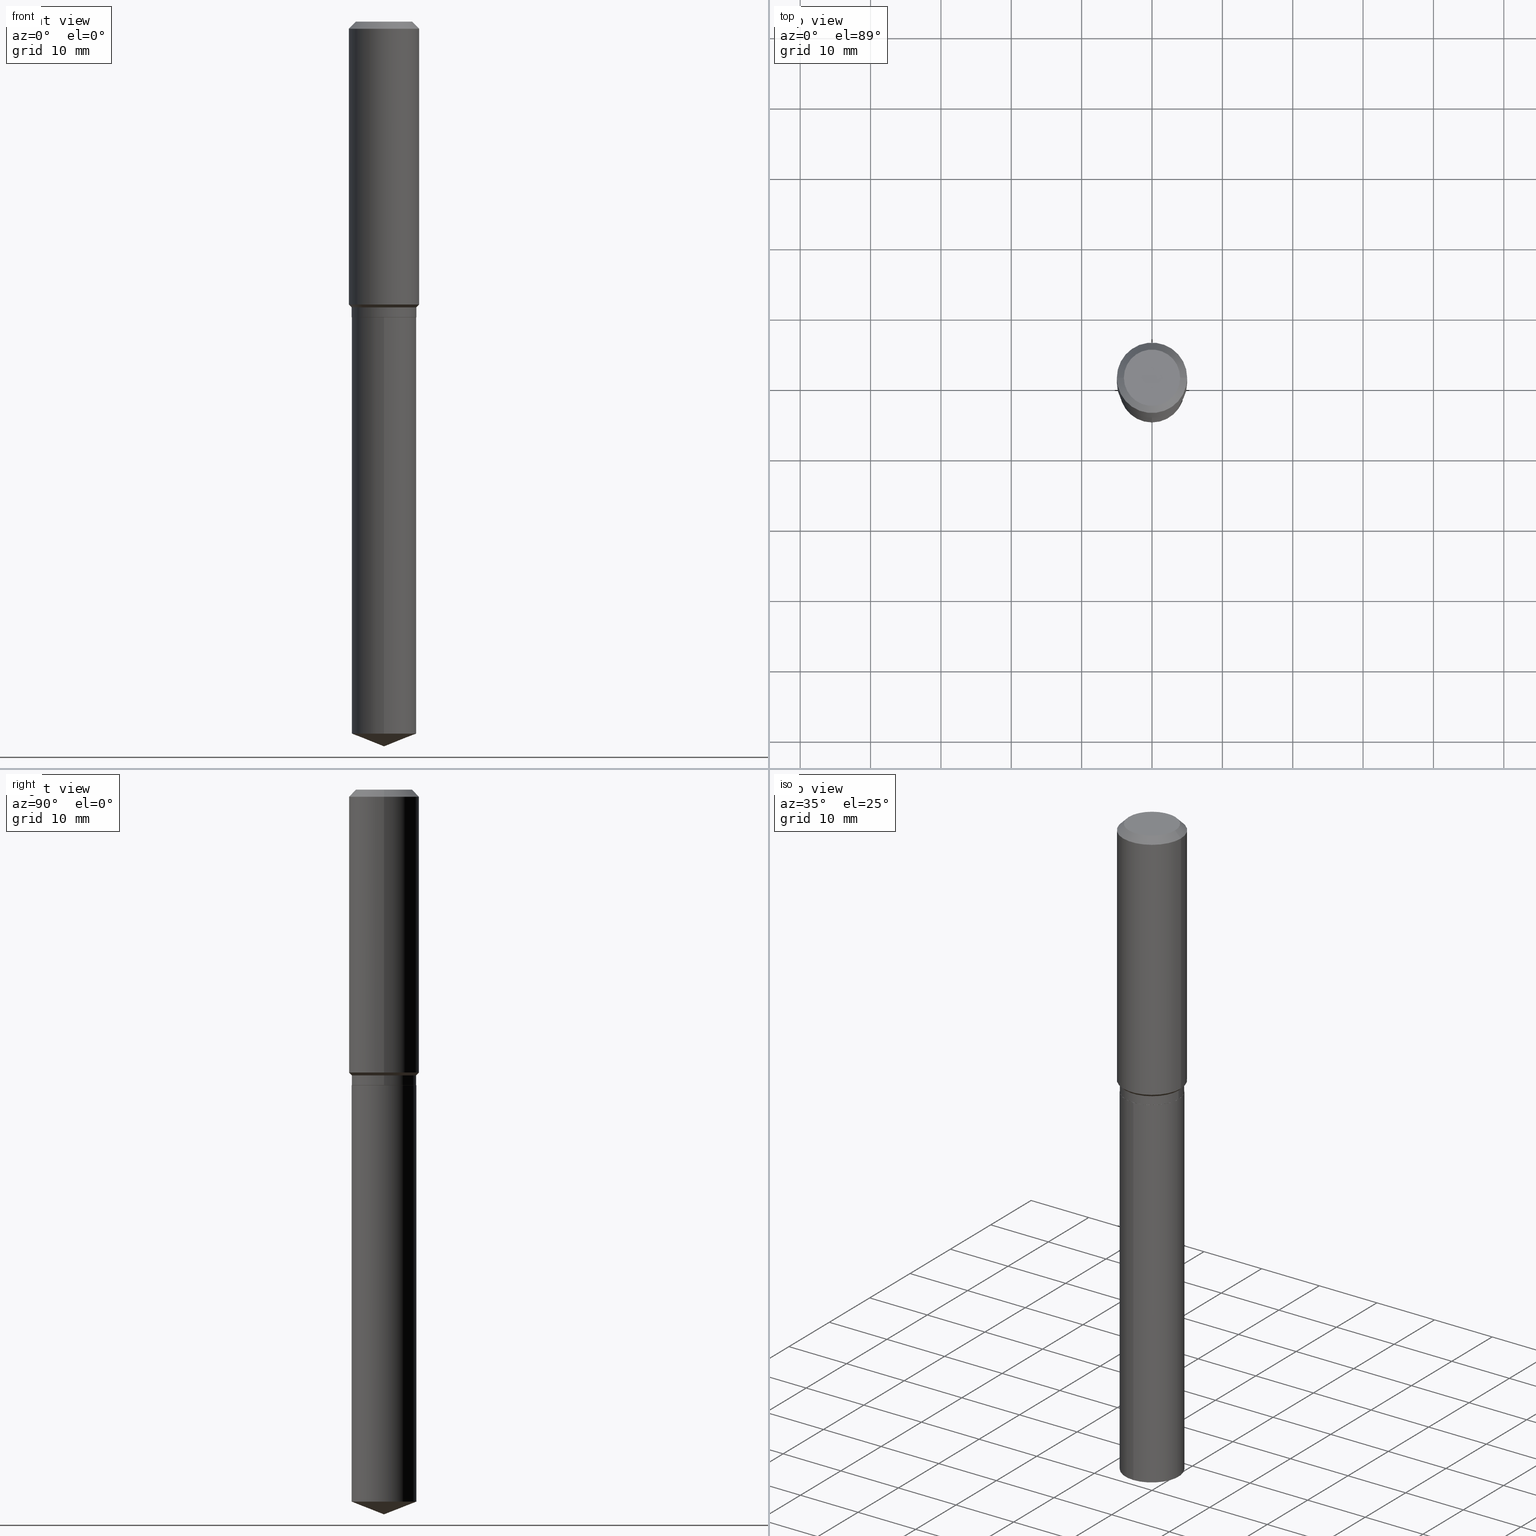
[diagram: canonical four-view strip — front | top / right | iso, engineering-drawing reading convention]
A machine part, canonical four-view strip (front | top / right | iso — engineering-drawing reading convention). The complete STEP part file that produces these views, byte-faithful:
ISO-10303-21;
HEADER;
FILE_DESCRIPTION (( 'STEP AP203' ),
    '1' );
FILE_NAME ('66565.STEP',
    '2024-04-25T01:03:59',
    ( '' ),
    ( '' ),
    'SwSTEP 2.0',
    'SolidWorks 2023',
    '' );
FILE_SCHEMA (( 'CONFIG_CONTROL_DESIGN' ));
ENDSEC;

DATA;
#1 = DIRECTION ( 'NONE',  ( -2.445468806185136597E-29, 3.491481338843145583E-15, 1.000000000000000000 ) ) ;
#2 = DIRECTION ( 'NONE',  ( -1.000000000000000000, 6.982962677686265922E-15, -4.876176775795935793E-29 ) ) ;
#3 = PERSON_AND_ORGANIZATION_ROLE ( 'classification_officer' ) ;
#4 = CIRCLE ( 'NONE', #286, 0.1811000000000000110 ) ;
#5 = CYLINDRICAL_SURFACE ( 'NONE', #139, 0.1811000000000000110 ) ;
#6 = PERSON_AND_ORGANIZATION_ROLE ( 'creator' ) ;
#7 = EDGE_CURVE ( 'NONE', #477, #257, #453, .T. ) ;
#8 = DIRECTION ( 'NONE',  ( -2.445490024045987495E-29, 3.491450953658761522E-15, 1.000000000000000000 ) ) ;
#9 = CARTESIAN_POINT ( 'NONE',  ( -9.427742298522567634E-47, 1.346031739168368355E-32, 3.855188123715870730E-18 ) ) ;
#10 = CARTESIAN_POINT ( 'NONE',  ( -1.264614540928942510E-15, -0.1811000000000057841, -1.653399999999999093 ) ) ;
#11 = PERSON_AND_ORGANIZATION ( #31, #107 ) ;
#12 = FACE_OUTER_BOUND ( 'NONE', #374, .T. ) ;
#13 = VECTOR ( 'NONE', #333, 39.37007874015748143 ) ;
#14 =( NAMED_UNIT ( * ) SI_UNIT ( $, .STERADIAN. ) SOLID_ANGLE_UNIT ( ) );
#15 = ADVANCED_FACE ( 'NONE', ( #442 ), #179, .T. ) ;
#16 = CARTESIAN_POINT ( 'NONE',  ( 3.909570980448176710E-29, -5.581831216408535603E-15, -1.598699999999999566 ) ) ;
#17 = ORIENTED_EDGE ( 'NONE', *, *, #326, .T. ) ;
#18 = PERSON_AND_ORGANIZATION_ROLE ( 'creator' ) ;
#19 = CARTESIAN_POINT ( 'NONE',  ( 0.1968500000000002192, -6.901436588424297877E-15, -1.582949999999999191 ) ) ;
#20 = ORIENTED_EDGE ( 'NONE', *, *, #144, .F. ) ;
#21 = VERTEX_POINT ( 'NONE', #487 ) ;
#22 = EDGE_CURVE ( 'NONE', #257, #477, #392, .T. ) ;
#23 = ORIENTED_EDGE ( 'NONE', *, *, #144, .T. ) ;
#24 = AXIS2_PLACEMENT_3D ( 'NONE', #82, #167, #342 ) ;
#25 = APPROVAL ( #347, 'UNSPECIFIED' ) ;
#26 = CONICAL_SURFACE ( 'NONE', #98, 0.1811000000000000110, 0.7853981633974472798 ) ;
#27 = ORIENTED_EDGE ( 'NONE', *, *, #245, .T. ) ;
#28 = LINE ( 'NONE', #267, #216 ) ;
#29 = LINE ( 'NONE', #301, #215 ) ;
#30 = ORIENTED_EDGE ( 'NONE', *, *, #359, .T. ) ;
#31 = PERSON ( 'UNSPECIFIED', 'UNSPECIFIED', 'UNSPECIFIED', ('UNSPECIFIED'), ('UNSPECIFIED'), ('UNSPECIFIED') ) ;
#32 = DIRECTION ( 'NONE',  ( -6.982962677686266711E-15, -1.000000000000000000, 3.016949744521549444E-15 ) ) ;
#33 = EDGE_CURVE ( 'NONE', #181, #252, #298, .T. ) ;
#34 = CARTESIAN_POINT ( 'NONE',  ( 4.042115389743411055E-29, -5.771069504973833690E-15, -1.652899999999999814 ) ) ;
#35 = AXIS2_PLACEMENT_3D ( 'NONE', #369, #182, #194 ) ;
#36 = AXIS2_PLACEMENT_3D ( 'NONE', #130, #163, #465 ) ;
#37 = CARTESIAN_POINT ( 'NONE',  ( 4.043338124146504977E-29, -5.772815245643255982E-15, -1.653399999999999981 ) ) ;
#38 = ORIENTED_EDGE ( 'NONE', *, *, #414, .F. ) ;
#39 = DIRECTION ( 'NONE',  ( 2.445490024045987214E-29, -3.491450953658761522E-15, -1.000000000000000000 ) ) ;
#40 = DIRECTION ( 'NONE',  ( -2.445468806185136597E-29, 3.491481338843145583E-15, 1.000000000000000000 ) ) ;
#41 = CYLINDRICAL_SURFACE ( 'NONE', #416, 0.1968500000000001082 ) ;
#42 = DIRECTION ( 'NONE',  ( -1.000000000000000000, 6.982962677686265922E-15, 0.000000000000000000 ) ) ;
#43 = APPROVAL_DATE_TIME ( #205, #196 ) ;
#44 = PRODUCT_DEFINITION ( 'UNKNOWN', '', #148, #436 ) ;
#45 = PERSON_AND_ORGANIZATION ( #31, #107 ) ;
#46 = VECTOR ( 'NONE', #203, 39.37007874015748143 ) ;
#47 = DATE_TIME_ROLE ( 'creation_date' ) ;
#48 = CARTESIAN_POINT ( 'NONE',  ( 9.627810689950954155E-31, -1.374596203102556547E-16, -0.03937000000000029365 ) ) ;
#49 = PERSON_AND_ORGANIZATION_ROLE ( 'design_owner' ) ;
#50 = FACE_OUTER_BOUND ( 'NONE', #482, .T. ) ;
#51 = COORDINATED_UNIVERSAL_TIME_OFFSET ( 5, 0, .BEHIND. ) ;
#52 = EDGE_CURVE ( 'NONE', #427, #366, #444, .T. ) ;
#53 = COORDINATED_UNIVERSAL_TIME_OFFSET ( 5, 0, .BEHIND. ) ;
#54 = APPROVAL_ROLE ( '' ) ;
#55 = VERTEX_POINT ( 'NONE', #10 ) ;
#56 = CONICAL_SURFACE ( 'NONE', #138, 0.1811000000000000110, 0.7853981633974472798 ) ;
#57 =( CONVERSION_BASED_UNIT ( 'INCH', #384 ) LENGTH_UNIT ( ) NAMED_UNIT ( #103 ) );
#58 = LINE ( 'NONE', #210, #78 ) ;
#59 = CALENDAR_DATE ( 2024, 24, 4 ) ;
#60 = ORIENTED_EDGE ( 'NONE', *, *, #22, .T. ) ;
#61 = CARTESIAN_POINT ( 'NONE',  ( -0.1811000000000000110, -4.389657466229642540E-15, -1.598699999999999566 ) ) ;
#62 = ORIENTED_EDGE ( 'NONE', *, *, #274, .T. ) ;
#63 = DIRECTION ( 'NONE',  ( -2.445468806185136597E-29, 3.491481338843145583E-15, 1.000000000000000000 ) ) ;
#64 = ADVANCED_FACE ( 'NONE', ( #12 ), #306, .T. ) ;
#65 = CYLINDRICAL_SURFACE ( 'NONE', #35, 0.1811000000000000110 ) ;
#66 = ORIENTED_EDGE ( 'NONE', *, *, #325, .F. ) ;
#67 = CONICAL_SURFACE ( 'NONE', #344, 0.1968500000000000250, 0.7853981633974447263 ) ;
#68 = AXIS2_PLACEMENT_3D ( 'NONE', #153, #448, #452 ) ;
#69 = CARTESIAN_POINT ( 'NONE',  ( 1.286792894461639136E-15, 0.1810999999999861609, -3.983662812866135106 ) ) ;
#70 = DIRECTION ( 'NONE',  ( -6.982962677686265922E-15, -1.000000000000000000, 3.498627837350006195E-15 ) ) ;
#71 = PLANE ( 'NONE',  #346 ) ;
#72 = DIRECTION ( 'NONE',  ( -2.445490024045987495E-29, 3.491450953658761522E-15, 1.000000000000000000 ) ) ;
#73 = ORIENTED_EDGE ( 'NONE', *, *, #428, .F. ) ;
#74 = DIRECTION ( 'NONE',  ( 0.7071067811865450192, -7.319954787623246579E-15, -0.7071067811865500152 ) ) ;
#75 = EDGE_CURVE ( 'NONE', #366, #427, #200, .T. ) ;
#76 = EDGE_LOOP ( 'NONE', ( #60, #323, #299, #115 ) ) ;
#77 = PLANE ( 'NONE',  #400 ) ;
#78 = VECTOR ( 'NONE', #128, 39.37007874015748143 ) ;
#79 = DIRECTION ( 'NONE',  ( 1.000000000000000000, -6.982962677686266711E-15, 4.876176775795935793E-29 ) ) ;
#80 = LINE ( 'NONE', #121, #97 ) ;
#81 = EDGE_CURVE ( 'NONE', #257, #427, #425, .T. ) ;
#82 = CARTESIAN_POINT ( 'NONE',  ( 0.000000000000000000, 0.000000000000000000, 0.000000000000000000 ) ) ;
#83 = COORDINATED_UNIVERSAL_TIME_OFFSET ( 5, 0, .BEHIND. ) ;
#84 = AXIS2_PLACEMENT_3D ( 'NONE', #352, #40, #126 ) ;
#85 =( LENGTH_UNIT ( ) NAMED_UNIT ( * ) SI_UNIT ( $, .METRE. ) );
#86 = EDGE_CURVE ( 'NONE', #269, #213, #361, .T. ) ;
#87 = FACE_OUTER_BOUND ( 'NONE', #434, .T. ) ;
#88 = FACE_OUTER_BOUND ( 'NONE', #337, .T. ) ;
#89 = CARTESIAN_POINT ( 'NONE',  ( 0.1968500000000000250, -1.512055823412797189E-15, -0.03937000000000029365 ) ) ;
#90 = COORDINATED_UNIVERSAL_TIME_OFFSET ( 5, 0, .BEHIND. ) ;
#91 = ORIENTED_EDGE ( 'NONE', *, *, #309, .T. ) ;
#92 = AXIS2_PLACEMENT_3D ( 'NONE', #143, #72, #32 ) ;
#93 = LINE ( 'NONE', #388, #377 ) ;
#94 = ORIENTED_EDGE ( 'NONE', *, *, #177, .T. ) ;
#95 = PRODUCT_RELATED_PRODUCT_CATEGORY ( 'detail', '', ( #363 ) ) ;
#96 = EDGE_LOOP ( 'NONE', ( #395, #445, #294, #152 ) ) ;
#97 = VECTOR ( 'NONE', #418, 39.37007874015748143 ) ;
#98 = AXIS2_PLACEMENT_3D ( 'NONE', #146, #446, #111 ) ;
#99 = EDGE_CURVE ( 'NONE', #334, #269, #80, .T. ) ;
#100 = FACE_OUTER_BOUND ( 'NONE', #76, .T. ) ;
#101 = DIRECTION ( 'NONE',  ( -1.000000000000000000, 6.982962677686265922E-15, 0.000000000000000000 ) ) ;
#102 = ORIENTED_EDGE ( 'NONE', *, *, #75, .F. ) ;
#103 = DIMENSIONAL_EXPONENTS ( 1.000000000000000000, 0.000000000000000000, 0.000000000000000000, 0.000000000000000000, 0.000000000000000000, 0.000000000000000000, 0.000000000000000000 ) ;
#104 = CARTESIAN_POINT ( 'NONE',  ( 3.871054846750760190E-29, -5.526840385321755480E-15, -1.582949999999999191 ) ) ;
#105 = CARTESIAN_POINT ( 'NONE',  ( -8.636270783906479342E-28, 1.233008151069932431E-13, 35.31507874015748172 ) ) ;
#106 = AXIS2_PLACEMENT_3D ( 'NONE', #382, #199, #459 ) ;
#107 = ORGANIZATION ( 'UNSPECIFIED', 'UNSPECIFIED', '' ) ;
#108 = MANIFOLD_SOLID_BREP ( 'Body-Move/Copy2[2]', #438 ) ;
#109 = DIRECTION ( 'NONE',  ( 1.000000000000000000, -6.982962677686265922E-15, 0.000000000000000000 ) ) ;
#110 = ORIENTED_EDGE ( 'NONE', *, *, #274, .F. ) ;
#111 = DIRECTION ( 'NONE',  ( 1.000000000000000000, -6.982962677686266711E-15, 0.000000000000000000 ) ) ;
#112 = ADVANCED_FACE ( 'NONE', ( #235 ), #67, .T. ) ;
#113 = EDGE_LOOP ( 'NONE', ( #150, #471 ) ) ;
#114 = CARTESIAN_POINT ( 'NONE',  ( -0.1806000000000000105, -4.486925837686404757E-15, -1.653399999999999981 ) ) ;
#115 = ORIENTED_EDGE ( 'NONE', *, *, #81, .F. ) ;
#116 = CARTESIAN_POINT ( 'NONE',  ( 0.1968500000000000250, -1.487948651171581601E-15, -0.03937000000000029365 ) ) ;
#117 = VECTOR ( 'NONE', #304, 39.37007874015748143 ) ;
#118 = CC_DESIGN_DATE_AND_TIME_ASSIGNMENT ( #424, #247, ( #208 ) ) ;
#119 = CARTESIAN_POINT ( 'NONE',  ( -8.636270783906479342E-28, 1.233008151069932431E-13, 35.31507874015748172 ) ) ;
#120 = CALENDAR_DATE ( 2024, 24, 4 ) ;
#121 = CARTESIAN_POINT ( 'NONE',  ( 0.1968500000000001082, -1.374596203102542397E-15, 9.598753983154305062E-30 ) ) ;
#122 = EDGE_CURVE ( 'NONE', #220, #413, #439, .T. ) ;
#123 = APPLICATION_CONTEXT ( 'configuration controlled 3d designs of mechanical parts and assemblies' ) ;
#124 = DATE_AND_TIME ( #59, #125 ) ;
#125 = LOCAL_TIME ( 21, 3, 59.00000000000000000, #51 ) ;
#126 = DIRECTION ( 'NONE',  ( 1.000000000000000000, -6.982962677686266711E-15, 0.000000000000000000 ) ) ;
#127 = CARTESIAN_POINT ( 'NONE',  ( -0.1968500000000000250, 1.237136582792286225E-15, -0.03937000000000029365 ) ) ;
#128 = DIRECTION ( 'NONE',  ( -0.7071067811865467956, 7.493145998870351005E-15, 0.7071067811865482389 ) ) ;
#129 = ORIENTED_EDGE ( 'NONE', *, *, #185, .T. ) ;
#130 = CARTESIAN_POINT ( 'NONE',  ( 0.000000000000000000, 0.000000000000000000, 0.000000000000000000 ) ) ;
#131 = DIRECTION ( 'NONE',  ( -2.445468806185136597E-29, 3.491481338843145583E-15, 1.000000000000000000 ) ) ;
#132 = ORIENTED_EDGE ( 'NONE', *, *, #343, .F. ) ;
#133 = AXIS2_PLACEMENT_3D ( 'NONE', #365, #328, #412 ) ;
#134 = ADVANCED_FACE ( 'NONE', ( #87 ), #5, .T. ) ;
#135 = VECTOR ( 'NONE', #280, 39.37007874015748143 ) ;
#136 = ORIENTED_EDGE ( 'NONE', *, *, #326, .F. ) ;
#137 = ADVANCED_FACE ( 'NONE', ( #278 ), #192, .T. ) ;
#138 = AXIS2_PLACEMENT_3D ( 'NONE', #16, #212, #151 ) ;
#139 = AXIS2_PLACEMENT_3D ( 'NONE', #310, #243, #456 ) ;
#140 = DIRECTION ( 'NONE',  ( -2.438088387897960049E-29, 3.491481338843145188E-15, 1.000000000000000000 ) ) ;
#141 = ORIENTED_EDGE ( 'NONE', *, *, #122, .T. ) ;
#142 = DIRECTION ( 'NONE',  ( -2.445468806185136597E-29, 3.491481338843145583E-15, 1.000000000000000000 ) ) ;
#143 = CARTESIAN_POINT ( 'NONE',  ( 4.043338124146503856E-29, -5.772815245643255193E-15, -1.653399999999999537 ) ) ;
#144 = EDGE_CURVE ( 'NONE', #249, #21, #464, .T. ) ;
#145 = ORIENTED_EDGE ( 'NONE', *, *, #359, .F. ) ;
#146 = CARTESIAN_POINT ( 'NONE',  ( 3.909570980448176710E-29, -5.581831216408535603E-15, -1.598699999999999566 ) ) ;
#147 = AXIS2_PLACEMENT_3D ( 'NONE', #241, #161, #313 ) ;
#148 = PRODUCT_DEFINITION_FORMATION_WITH_SPECIFIED_SOURCE ( 'ANY', '', #363, .NOT_KNOWN. ) ;
#149 = FACE_OUTER_BOUND ( 'NONE', #96, .T. ) ;
#150 = ORIENTED_EDGE ( 'NONE', *, *, #122, .F. ) ;
#151 = DIRECTION ( 'NONE',  ( 1.000000000000000000, -6.982962677686266711E-15, 0.000000000000000000 ) ) ;
#152 = ORIENTED_EDGE ( 'NONE', *, *, #401, .F. ) ;
#153 = CARTESIAN_POINT ( 'NONE',  ( 3.871054846750760190E-29, -5.526840385321755480E-15, -1.582949999999999191 ) ) ;
#154 = ADVANCED_FACE ( 'NONE', ( #204 ), #178, .T. ) ;
#155 = DIRECTION ( 'NONE',  ( 1.000000000000000000, -6.982962677686265922E-15, 4.876223630392693006E-29 ) ) ;
#156 = APPROVAL_PERSON_ORGANIZATION ( #45, #25, #54 ) ;
#157 = CARTESIAN_POINT ( 'NONE',  ( 0.1811000000000000110, -1.264614540928982939E-15, 8.830756140966441615E-30 ) ) ;
#158 = SECURITY_CLASSIFICATION_LEVEL ( 'unclassified' ) ;
#159 = DIRECTION ( 'NONE',  ( -2.445468806185136877E-29, 3.491481338843145188E-15, 1.000000000000000000 ) ) ;
#160 = DIRECTION ( 'NONE',  ( -2.445490024045987495E-29, 3.491450953658761522E-15, 1.000000000000000000 ) ) ;
#161 = DIRECTION ( 'NONE',  ( -2.445468806185136597E-29, 3.491481338843145583E-15, 1.000000000000000000 ) ) ;
#162 = EDGE_CURVE ( 'NONE', #321, #249, #29, .T. ) ;
#163 = DIRECTION ( 'NONE',  ( 0.000000000000000000, 0.000000000000000000, 1.000000000000000000 ) ) ;
#164 = CARTESIAN_POINT ( 'NONE',  ( 4.043338124146503856E-29, -5.772815245643255193E-15, -1.653399999999999537 ) ) ;
#165 = AXIS2_PLACEMENT_3D ( 'NONE', #104, #406, #109 ) ;
#166 = LOCAL_TIME ( 21, 3, 59.00000000000000000, #387 ) ;
#167 = DIRECTION ( 'NONE',  ( -2.445468806185136597E-29, 3.491481338843145583E-15, 1.000000000000000000 ) ) ;
#168 = PERSON_AND_ORGANIZATION ( #31, #107 ) ;
#169 = EDGE_LOOP ( 'NONE', ( #285, #229, #195, #145 ) ) ;
#170 = PERSON_AND_ORGANIZATION ( #31, #107 ) ;
#171 = ADVANCED_FACE ( 'NONE', ( #376 ), #227, .F. ) ;
#172 = ORIENTED_EDGE ( 'NONE', *, *, #488, .F. ) ;
#173 = ORIENTED_EDGE ( 'NONE', *, *, #409, .T. ) ;
#174 = AXIS2_PLACEMENT_3D ( 'NONE', #295, #140, #186 ) ;
#175 = CIRCLE ( 'NONE', #201, 0.1811000000000000110 ) ;
#176 = APPLICATION_CONTEXT ( 'configuration controlled 3d designs of mechanical parts and assemblies' ) ;
#177 = EDGE_CURVE ( 'NONE', #413, #220, #219, .T. ) ;
#178 = CYLINDRICAL_SURFACE ( 'NONE', #92, 0.1811000000000000110 ) ;
#179 = CONICAL_SURFACE ( 'NONE', #270, 99.94676754583991851, 1.195550537616119291 ) ;
#180 = AXIS2_PLACEMENT_3D ( 'NONE', #479, #297, #441 ) ;
#181 = VERTEX_POINT ( 'NONE', #262 ) ;
#182 = DIRECTION ( 'NONE',  ( -2.445468806185136597E-29, 3.491481338843145583E-15, 1.000000000000000000 ) ) ;
#183 = CARTESIAN_POINT ( 'NONE',  ( 4.042115389743411055E-29, -5.771069504973833690E-15, -1.652899999999999814 ) ) ;
#184 = CARTESIAN_POINT ( 'NONE',  ( 0.1811000000000000110, -6.846445757337518542E-15, -1.598699999999999566 ) ) ;
#185 = EDGE_CURVE ( 'NONE', #413, #477, #255, .T. ) ;
#186 = DIRECTION ( 'NONE',  ( 1.000000000000000000, -6.982962677686265922E-15, 4.876176775795935793E-29 ) ) ;
#187 = ORIENTED_EDGE ( 'NONE', *, *, #33, .T. ) ;
#188 = FACE_OUTER_BOUND ( 'NONE', #432, .T. ) ;
#189 = DIRECTION ( 'NONE',  ( -2.445468806185136877E-29, 3.491481338843145188E-15, 1.000000000000000000 ) ) ;
#190 = ORIENTED_EDGE ( 'NONE', *, *, #349, .F. ) ;
#191 = DIRECTION ( 'NONE',  ( -2.445490024045987495E-29, 3.491450953658761522E-15, 1.000000000000000000 ) ) ;
#192 = CONICAL_SURFACE ( 'NONE', #307, 99.94676754583991851, 1.195550537616119291 ) ;
#193 = CC_DESIGN_APPROVAL ( #25, ( #208 ) ) ;
#194 = DIRECTION ( 'NONE',  ( 1.000000000000000000, -6.982962677686266711E-15, 4.876176775795936353E-29 ) ) ;
#195 = ORIENTED_EDGE ( 'NONE', *, *, #86, .T. ) ;
#196 = APPROVAL ( #429, 'UNSPECIFIED' ) ;
#197 = DIRECTION ( 'NONE',  ( 6.982962677686265922E-15, 1.000000000000000000, -3.491450953658761522E-15 ) ) ;
#198 = DIRECTION ( 'NONE',  ( -2.445490024045987495E-29, 3.491450953658761522E-15, 1.000000000000000000 ) ) ;
#199 = DIRECTION ( 'NONE',  ( -2.445468806185136597E-29, 3.491481338843145583E-15, 1.000000000000000000 ) ) ;
#200 = CIRCLE ( 'NONE', #284, 0.1811000000000000110 ) ;
#201 = AXIS2_PLACEMENT_3D ( 'NONE', #261, #191, #481 ) ;
#202 = CALENDAR_DATE ( 2024, 24, 4 ) ;
#203 = DIRECTION ( 'NONE',  ( -2.445468806185136877E-29, 3.491481338843145188E-15, 1.000000000000000000 ) ) ;
#204 = FACE_OUTER_BOUND ( 'NONE', #271, .T. ) ;
#205 = DATE_AND_TIME ( #202, #166 ) ;
#206 = DIRECTION ( 'NONE',  ( 1.000000000000000000, -6.982962677686263555E-15, 0.000000000000000000 ) ) ;
#207 = ORIENTED_EDGE ( 'NONE', *, *, #86, .F. ) ;
#208 = SECURITY_CLASSIFICATION ( '', '', #158 ) ;
#209 = CC_DESIGN_PERSON_AND_ORGANIZATION_ASSIGNMENT ( #419, #3, ( #208 ) ) ;
#210 = CARTESIAN_POINT ( 'NONE',  ( -0.1811000000000000110, -4.295038321946993891E-15, -1.598699999999999566 ) ) ;
#211 = ORIENTED_EDGE ( 'NONE', *, *, #256, .F. ) ;
#212 = DIRECTION ( 'NONE',  ( -2.445468806185136597E-29, 3.491481338843145583E-15, 1.000000000000000000 ) ) ;
#213 = VERTEX_POINT ( 'NONE', #217 ) ;
#214 = EDGE_CURVE ( 'NONE', #213, #269, #290, .T. ) ;
#215 = VECTOR ( 'NONE', #293, 39.37007874015747433 ) ;
#216 = VECTOR ( 'NONE', #234, 39.37007874015748854 ) ;
#217 = CARTESIAN_POINT ( 'NONE',  ( -0.1968500000000000250, -1.433446627472247151E-15, -0.03937000000000029365 ) ) ;
#218 = ORIENTED_EDGE ( 'NONE', *, *, #162, .T. ) ;
#219 = CIRCLE ( 'NONE', #484, 0.1806000000000000105 ) ;
#220 = VERTEX_POINT ( 'NONE', #489 ) ;
#221 =( GEOMETRIC_REPRESENTATION_CONTEXT ( 3 ) GLOBAL_UNCERTAINTY_ASSIGNED_CONTEXT ( ( #332 ) ) GLOBAL_UNIT_ASSIGNED_CONTEXT ( ( #57, #312, #14 ) ) REPRESENTATION_CONTEXT ( 'NONE', 'WORKASPACE' ) );
#222 = ADVANCED_FACE ( 'NONE', ( #291 ), #463, .T. ) ;
#223 = LINE ( 'NONE', #373, #259 ) ;
#224 = ORIENTED_EDGE ( 'NONE', *, *, #325, .T. ) ;
#225 = EDGE_LOOP ( 'NONE', ( #38, #218, #172 ) ) ;
#226 = CARTESIAN_POINT ( 'NONE',  ( -0.1811000000000000110, -4.389657466229642540E-15, -1.652899999999999814 ) ) ;
#227 = PLANE ( 'NONE',  #174 ) ;
#228 = ADVANCED_FACE ( 'NONE', ( #100 ), #65, .T. ) ;
#229 = ORIENTED_EDGE ( 'NONE', *, *, #460, .T. ) ;
#230 = CLOSED_SHELL ( 'NONE', ( #154, #15, #137, #478, #437 ) ) ;
#231 = CARTESIAN_POINT ( 'NONE',  ( 4.043338124146503856E-29, -5.772815245643255193E-15, -1.653399999999999537 ) ) ;
#232 = VECTOR ( 'NONE', #159, 39.37007874015748143 ) ;
#233 = CARTESIAN_POINT ( 'NONE',  ( 1.286792894461581746E-15, 0.1810999999999942378, -1.653400000000000203 ) ) ;
#234 = DIRECTION ( 'NONE',  ( -6.497071151882119836E-15, -0.9304175679820245737, 0.3665012267242972466 ) ) ;
#235 = FACE_OUTER_BOUND ( 'NONE', #283, .T. ) ;
#236 = CYLINDRICAL_SURFACE ( 'NONE', #475, 0.1811000000000000110 ) ;
#237 = DIRECTION ( 'NONE',  ( -2.445468806185136597E-29, 3.491481338843145583E-15, 1.000000000000000000 ) ) ;
#238 = CARTESIAN_POINT ( 'NONE',  ( 4.043338124146503856E-29, -5.772815245643255193E-15, -1.653399999999999537 ) ) ;
#239 = ADVANCED_FACE ( 'NONE', ( #330 ), #404, .T. ) ;
#240 = CC_DESIGN_APPROVAL ( #253, ( #44 ) ) ;
#241 = CARTESIAN_POINT ( 'NONE',  ( 9.627810689950954155E-31, -1.374596203102556547E-16, -0.03937000000000029365 ) ) ;
#242 = DIRECTION ( 'NONE',  ( 1.000000000000000000, -6.982962677686265922E-15, 4.876223630392693006E-29 ) ) ;
#243 = DIRECTION ( 'NONE',  ( -2.445468806185136597E-29, 3.491481338843145583E-15, 1.000000000000000000 ) ) ;
#244 = EDGE_LOOP ( 'NONE', ( #398, #403, #447 ) ) ;
#245 = EDGE_CURVE ( 'NONE', #334, #411, #472, .T. ) ;
#246 = CARTESIAN_POINT ( 'NONE',  ( -0.1968500000000001082, 1.398703375343757985E-15, -9.682923725166787881E-30 ) ) ;
#247 = DATE_TIME_ROLE ( 'classification_date' ) ;
#248 = CONICAL_SURFACE ( 'NONE', #367, 0.1806000000000000105, 0.7853981633972775267 ) ;
#249 = VERTEX_POINT ( 'NONE', #69 ) ;
#250 = CARTESIAN_POINT ( 'NONE',  ( 4.043338124146504977E-29, -5.772815245643255982E-15, -1.653399999999999981 ) ) ;
#251 = ORIENTED_EDGE ( 'NONE', *, *, #52, .T. ) ;
#252 = VERTEX_POINT ( 'NONE', #410 ) ;
#253 = APPROVAL ( #345, 'UNSPECIFIED' ) ;
#254 = AXIS2_PLACEMENT_3D ( 'NONE', #402, #476, #101 ) ;
#255 = LINE ( 'NONE', #339, #13 ) ;
#256 = EDGE_CURVE ( 'NONE', #477, #366, #223, .T. ) ;
#257 = VERTEX_POINT ( 'NONE', #335 ) ;
#258 = DIRECTION ( 'NONE',  ( 1.000000000000000000, -6.982962677686263555E-15, 0.000000000000000000 ) ) ;
#259 = VECTOR ( 'NONE', #189, 39.37007874015748143 ) ;
#260 = ORIENTED_EDGE ( 'NONE', *, *, #245, .F. ) ;
#261 = CARTESIAN_POINT ( 'NONE',  ( 4.043338124146503856E-29, -5.772815245643255193E-15, -1.653399999999999537 ) ) ;
#262 = CARTESIAN_POINT ( 'NONE',  ( 0.1574800000000000089, -1.284169937930321189E-15, 3.855188123724205385E-18 ) ) ;
#263 = VERTEX_POINT ( 'NONE', #486 ) ;
#264 = CARTESIAN_POINT ( 'NONE',  ( 9.741972586415979008E-29, -1.390881356590026921E-14, -3.983662812866134662 ) ) ;
#265 = ADVANCED_FACE ( 'NONE', ( #149 ), #56, .T. ) ;
#266 = ORIENTED_EDGE ( 'NONE', *, *, #7, .T. ) ;
#267 = CARTESIAN_POINT ( 'NONE',  ( 9.916391884284218527E-29, -1.415793409481399778E-14, -4.054999999999999716 ) ) ;
#268 = DIRECTION ( 'NONE',  ( -2.445490024045987495E-29, 3.491450953658761522E-15, 1.000000000000000000 ) ) ;
#269 = VERTEX_POINT ( 'NONE', #89 ) ;
#270 = AXIS2_PLACEMENT_3D ( 'NONE', #105, #407, #70 ) ;
#271 = EDGE_LOOP ( 'NONE', ( #355, #23, #190, #66 ) ) ;
#272 = CARTESIAN_POINT ( 'NONE',  ( -0.1968500000000002192, -4.128137009977996903E-15, -1.582949999999999191 ) ) ;
#273 = DIRECTION ( 'NONE',  ( -2.445490024045987495E-29, 3.491450953658761522E-15, 1.000000000000000000 ) ) ;
#274 = EDGE_CURVE ( 'NONE', #411, #213, #320, .T. ) ;
#275 = DIRECTION ( 'NONE',  ( -2.445490024045987775E-29, 3.491450953658761522E-15, 1.000000000000000000 ) ) ;
#276 = APPROVAL_ROLE ( '' ) ;
#277 = CIRCLE ( 'NONE', #405, 0.1811000000000000110 ) ;
#278 = FACE_OUTER_BOUND ( 'NONE', #244, .T. ) ;
#279 = APPLICATION_PROTOCOL_DEFINITION ( 'international standard', 'config_control_design', 1994, #123 ) ;
#280 = DIRECTION ( 'NONE',  ( -0.7071067811865450192, 2.468850131082230634E-15, -0.7071067811865500152 ) ) ;
#281 = CC_DESIGN_PERSON_AND_ORGANIZATION_ASSIGNMENT ( #350, #18, ( #44 ) ) ;
#282 = CARTESIAN_POINT ( 'NONE',  ( 9.741972586415979008E-29, -1.390881356590026921E-14, -3.983662812866134662 ) ) ;
#283 = EDGE_LOOP ( 'NONE', ( #360, #480, #30, #370 ) ) ;
#284 = AXIS2_PLACEMENT_3D ( 'NONE', #318, #1, #455 ) ;
#285 = ORIENTED_EDGE ( 'NONE', *, *, #33, .F. ) ;
#286 = AXIS2_PLACEMENT_3D ( 'NONE', #264, #198, #417 ) ;
#287 = PRODUCT_DEFINITION_SHAPE ( 'NONE', 'NONE',  #44 ) ;
#288 = EDGE_LOOP ( 'NONE', ( #451, #305 ) ) ;
#289 = AXIS2_PLACEMENT_3D ( 'NONE', #183, #142, #378 ) ;
#290 = CIRCLE ( 'NONE', #133, 0.1968500000000000250 ) ;
#291 = FACE_OUTER_BOUND ( 'NONE', #169, .T. ) ;
#292 = CC_DESIGN_PERSON_AND_ORGANIZATION_ASSIGNMENT ( #11, #314, ( #148 ) ) ;
#293 = DIRECTION ( 'NONE',  ( 6.611014441532068167E-15, 0.9304175679820272382, 0.3665012267242907518 ) ) ;
#294 = ORIENTED_EDGE ( 'NONE', *, *, #343, .T. ) ;
#295 = CARTESIAN_POINT ( 'NONE',  ( 2.296886989417275396E-29, -8.273832672401003968E-15, -1.653399999999999981 ) ) ;
#296 = ORIENTED_EDGE ( 'NONE', *, *, #401, .T. ) ;
#297 = DIRECTION ( 'NONE',  ( -2.445468806185136597E-29, 3.491481338843145583E-15, 1.000000000000000000 ) ) ;
#298 = CIRCLE ( 'NONE', #354, 0.1574800000000000089 ) ;
#299 = ORIENTED_EDGE ( 'NONE', *, *, #52, .F. ) ;
#300 = APPROVAL_PERSON_ORGANIZATION ( #390, #253, #276 ) ;
#301 = CARTESIAN_POINT ( 'NONE',  ( 9.916462662755118190E-29, -1.415783361708627607E-14, -4.054999999999999716 ) ) ;
#302 = DIRECTION ( 'NONE',  ( -2.445468806185136597E-29, 3.491481338843145583E-15, 1.000000000000000000 ) ) ;
#303 = DIRECTION ( 'NONE',  ( -2.445468806185136597E-29, 3.491481338843145583E-15, 1.000000000000000000 ) ) ;
#304 = DIRECTION ( 'NONE',  ( 0.7071067811865467956, -2.468850131082249172E-15, 0.7071067811865482389 ) ) ;
#305 = ORIENTED_EDGE ( 'NONE', *, *, #428, .T. ) ;
#306 = CYLINDRICAL_SURFACE ( 'NONE', #24, 0.1968500000000001082 ) ;
#307 = AXIS2_PLACEMENT_3D ( 'NONE', #119, #273, #389 ) ;
#308 = CC_DESIGN_SECURITY_CLASSIFICATION ( #208, ( #148 ) ) ;
#309 = EDGE_CURVE ( 'NONE', #252, #181, #327, .T. ) ;
#310 = CARTESIAN_POINT ( 'NONE',  ( 0.000000000000000000, 0.000000000000000000, 0.000000000000000000 ) ) ;
#311 = PERSON_AND_ORGANIZATION ( #31, #107 ) ;
#312 =( NAMED_UNIT ( * ) PLANE_ANGLE_UNIT ( ) SI_UNIT ( $, .RADIAN. ) );
#313 = DIRECTION ( 'NONE',  ( 1.000000000000000000, -6.982962677686265922E-15, 0.000000000000000000 ) ) ;
#314 = PERSON_AND_ORGANIZATION_ROLE ( 'design_supplier' ) ;
#315 = EDGE_CURVE ( 'NONE', #366, #411, #58, .T. ) ;
#316 = LINE ( 'NONE', #127, #135 ) ;
#317 = CIRCLE ( 'NONE', #68, 0.1968500000000002192 ) ;
#318 = CARTESIAN_POINT ( 'NONE',  ( 3.909570980448176710E-29, -5.581831216408535603E-15, -1.598699999999999566 ) ) ;
#319 = DIRECTION ( 'NONE',  ( -6.982962677686266711E-15, -1.000000000000000000, 3.016949744521549444E-15 ) ) ;
#320 = LINE ( 'NONE', #246, #46 ) ;
#321 = VERTEX_POINT ( 'NONE', #386 ) ;
#322 = APPLICATION_PROTOCOL_DEFINITION ( 'international standard', 'config_control_design', 1994, #176 ) ;
#323 = ORIENTED_EDGE ( 'NONE', *, *, #256, .T. ) ;
#324 = ORIENTED_EDGE ( 'NONE', *, *, #185, .F. ) ;
#325 = EDGE_CURVE ( 'NONE', #263, #55, #93, .T. ) ;
#326 = EDGE_CURVE ( 'NONE', #220, #257, #466, .T. ) ;
#327 = CIRCLE ( 'NONE', #394, 0.1574800000000000089 ) ;
#328 = DIRECTION ( 'NONE',  ( -2.445468806185136597E-29, 3.491481338843145583E-15, 1.000000000000000000 ) ) ;
#329 = ORIENTED_EDGE ( 'NONE', *, *, #7, .F. ) ;
#330 = FACE_OUTER_BOUND ( 'NONE', #415, .T. ) ;
#331 = ORIENTED_EDGE ( 'NONE', *, *, #22, .F. ) ;
#332 = UNCERTAINTY_MEASURE_WITH_UNIT (LENGTH_MEASURE( 1.000000000000000082E-05 ), #57, 'distance_accuracy_value', 'NONE');
#333 = DIRECTION ( 'NONE',  ( -0.7071067811864267805, 7.493145998869918709E-15, 0.7071067811866682540 ) ) ;
#334 = VERTEX_POINT ( 'NONE', #19 ) ;
#335 = CARTESIAN_POINT ( 'NONE',  ( 0.1811000000000000110, -7.035684045902816629E-15, -1.652899999999999814 ) ) ;
#336 = ADVANCED_FACE ( 'NONE', ( #50 ), #248, .T. ) ;
#337 = EDGE_LOOP ( 'NONE', ( #110, #296, #440, #468 ) ) ;
#338 = LOCAL_TIME ( 21, 3, 59.00000000000000000, #90 ) ;
#339 = CARTESIAN_POINT ( 'NONE',  ( -0.1806000000000000105, -4.489575064860515169E-15, -1.653399999999999981 ) ) ;
#340 = DIRECTION ( 'NONE',  ( 1.000000000000000000, -6.982962677686266711E-15, 0.000000000000000000 ) ) ;
#341 = LINE ( 'NONE', #116, #368 ) ;
#342 = DIRECTION ( 'NONE',  ( 1.000000000000000000, -6.982962677686266711E-15, 4.876176775795935793E-29 ) ) ;
#343 = EDGE_CURVE ( 'NONE', #427, #334, #351, .T. ) ;
#344 = AXIS2_PLACEMENT_3D ( 'NONE', #48, #462, #42 ) ;
#345 = APPROVAL_STATUS ( 'not_yet_approved' ) ;
#346 = AXIS2_PLACEMENT_3D ( 'NONE', #231, #39, #197 ) ;
#347 = APPROVAL_STATUS ( 'not_yet_approved' ) ;
#348 = DIRECTION ( 'NONE',  ( -6.982962677686266711E-15, -1.000000000000000000, 3.016949744521549444E-15 ) ) ;
#349 = EDGE_CURVE ( 'NONE', #55, #21, #277, .T. ) ;
#350 = PERSON_AND_ORGANIZATION ( #31, #107 ) ;
#351 = LINE ( 'NONE', #397, #117 ) ;
#352 = CARTESIAN_POINT ( 'NONE',  ( 3.909570980448176710E-29, -5.581831216408535603E-15, -1.598699999999999566 ) ) ;
#353 = DATE_AND_TIME ( #120, #385 ) ;
#354 = AXIS2_PLACEMENT_3D ( 'NONE', #490, #237, #155 ) ;
#355 = ORIENTED_EDGE ( 'NONE', *, *, #488, .T. ) ;
#356 = MECHANICAL_CONTEXT ( 'NONE', #123, 'mechanical' ) ;
#357 = DIRECTION ( 'NONE',  ( -2.445490024045987775E-29, 3.491450953658761522E-15, 1.000000000000000000 ) ) ;
#358 = ORIENTED_EDGE ( 'NONE', *, *, #315, .T. ) ;
#359 = EDGE_CURVE ( 'NONE', #252, #213, #316, .T. ) ;
#360 = ORIENTED_EDGE ( 'NONE', *, *, #460, .F. ) ;
#361 = CIRCLE ( 'NONE', #147, 0.1968500000000000250 ) ;
#362 = LOCAL_TIME ( 21, 3, 59.00000000000000000, #83 ) ;
#363 = PRODUCT ( '66565', '66565', '', ( #356 ) ) ;
#364 = CC_DESIGN_PERSON_AND_ORGANIZATION_ASSIGNMENT ( #168, #49, ( #363 ) ) ;
#365 = CARTESIAN_POINT ( 'NONE',  ( 9.627810689950954155E-31, -1.374596203102556547E-16, -0.03937000000000029365 ) ) ;
#366 = VERTEX_POINT ( 'NONE', #61 ) ;
#367 = AXIS2_PLACEMENT_3D ( 'NONE', #250, #131, #206 ) ;
#368 = VECTOR ( 'NONE', #74, 39.37007874015748143 ) ;
#369 = CARTESIAN_POINT ( 'NONE',  ( 0.000000000000000000, 0.000000000000000000, 0.000000000000000000 ) ) ;
#370 = ORIENTED_EDGE ( 'NONE', *, *, #214, .T. ) ;
#371 = ORIENTED_EDGE ( 'NONE', *, *, #81, .T. ) ;
#372 = CARTESIAN_POINT ( 'NONE',  ( -4.713871149261283817E-47, 6.730158695841841775E-33, 1.927594061857935365E-18 ) ) ;
#373 = CARTESIAN_POINT ( 'NONE',  ( -0.1811000000000000110, 1.286792894461541515E-15, -8.908191448451634438E-30 ) ) ;
#374 = EDGE_LOOP ( 'NONE', ( #27, #62, #207, #474 ) ) ;
#375 = DIRECTION ( 'NONE',  ( 2.438088387897960049E-29, -3.491481338843145188E-15, -1.000000000000000000 ) ) ;
#376 = FACE_OUTER_BOUND ( 'NONE', #113, .T. ) ;
#377 = VECTOR ( 'NONE', #357, 39.37007874015748143 ) ;
#378 = DIRECTION ( 'NONE',  ( 1.000000000000000000, -6.982962677686266711E-15, 0.000000000000000000 ) ) ;
#379 = CIRCLE ( 'NONE', #473, 0.1811000000000000110 ) ;
#380 = CC_DESIGN_DATE_AND_TIME_ASSIGNMENT ( #457, #47, ( #44 ) ) ;
#381 = APPROVAL_DATE_TIME ( #124, #25 ) ;
#382 = CARTESIAN_POINT ( 'NONE',  ( 4.043338124146504977E-29, -5.772815245643255982E-15, -1.653399999999999981 ) ) ;
#383 = VECTOR ( 'NONE', #275, 39.37007874015748143 ) ;
#384 = LENGTH_MEASURE_WITH_UNIT ( LENGTH_MEASURE( 0.02539999999999999897 ), #85 );
#385 = LOCAL_TIME ( 21, 3, 59.00000000000000000, #53 ) ;
#386 = CARTESIAN_POINT ( 'NONE',  ( 9.916462047506479508E-29, -1.415783361708627607E-14, -4.054999999999999716 ) ) ;
#387 = COORDINATED_UNIVERSAL_TIME_OFFSET ( 5, 0, .BEHIND. ) ;
#388 = CARTESIAN_POINT ( 'NONE',  ( -1.264614540928942510E-15, -0.1811000000000057841, -1.653399999999999093 ) ) ;
#389 = DIRECTION ( 'NONE',  ( -6.982962677686265922E-15, -1.000000000000000000, 3.498627837350006195E-15 ) ) ;
#390 = PERSON_AND_ORGANIZATION ( #31, #107 ) ;
#391 = EDGE_LOOP ( 'NONE', ( #91, #187 ) ) ;
#392 = CIRCLE ( 'NONE', #430, 0.1811000000000000110 ) ;
#393 = APPROVAL_DATE_TIME ( #353, #253 ) ;
#394 = AXIS2_PLACEMENT_3D ( 'NONE', #9, #450, #242 ) ;
#395 = ORIENTED_EDGE ( 'NONE', *, *, #315, .F. ) ;
#396 = ADVANCED_FACE ( 'NONE', ( #88 ), #41, .T. ) ;
#397 = CARTESIAN_POINT ( 'NONE',  ( 0.1811000000000000110, -6.846445757337518542E-15, -1.598699999999999566 ) ) ;
#398 = ORIENTED_EDGE ( 'NONE', *, *, #162, .F. ) ;
#399 = EDGE_LOOP ( 'NONE', ( #20, #173, #224, #73 ) ) ;
#400 = AXIS2_PLACEMENT_3D ( 'NONE', #372, #375, #2 ) ;
#401 = EDGE_CURVE ( 'NONE', #411, #334, #317, .T. ) ;
#402 = CARTESIAN_POINT ( 'NONE',  ( 9.627810689950954155E-31, -1.374596203102556547E-16, -0.03937000000000029365 ) ) ;
#403 = ORIENTED_EDGE ( 'NONE', *, *, #414, .T. ) ;
#404 = CONICAL_SURFACE ( 'NONE', #180, 0.1806000000000000105, 0.7853981633972775267 ) ;
#405 = AXIS2_PLACEMENT_3D ( 'NONE', #164, #268, #420 ) ;
#406 = DIRECTION ( 'NONE',  ( -2.445468806185136597E-29, 3.491481338843145583E-15, 1.000000000000000000 ) ) ;
#407 = DIRECTION ( 'NONE',  ( -2.445490024045987495E-29, 3.491450953658761522E-15, 1.000000000000000000 ) ) ;
#408 = CARTESIAN_POINT ( 'NONE',  ( 0.000000000000000000, 0.000000000000000000, 0.000000000000000000 ) ) ;
#409 = EDGE_CURVE ( 'NONE', #249, #263, #4, .T. ) ;
#410 = CARTESIAN_POINT ( 'NONE',  ( -0.1574800000000000089, 1.168406772637159618E-15, 3.855188123707939751E-18 ) ) ;
#411 = VERTEX_POINT ( 'NONE', #272 ) ;
#412 = DIRECTION ( 'NONE',  ( 1.000000000000000000, -6.982962677686265922E-15, 0.000000000000000000 ) ) ;
#413 = VERTEX_POINT ( 'NONE', #114 ) ;
#414 = EDGE_CURVE ( 'NONE', #321, #263, #28, .T. ) ;
#415 = EDGE_LOOP ( 'NONE', ( #324, #94, #17, #329 ) ) ;
#416 = AXIS2_PLACEMENT_3D ( 'NONE', #408, #303, #79 ) ;
#417 = DIRECTION ( 'NONE',  ( -6.982962677686266711E-15, -1.000000000000000000, 3.016949744521549444E-15 ) ) ;
#418 = DIRECTION ( 'NONE',  ( -2.445468806185136877E-29, 3.491481338843145188E-15, 1.000000000000000000 ) ) ;
#419 = PERSON_AND_ORGANIZATION ( #31, #107 ) ;
#420 = DIRECTION ( 'NONE',  ( -6.982962677686266711E-15, -1.000000000000000000, 3.016949744521549444E-15 ) ) ;
#421 = CALENDAR_DATE ( 2024, 24, 4 ) ;
#422 = APPROVAL_PERSON_ORGANIZATION ( #170, #196, #469 ) ;
#423 = ADVANCED_FACE ( 'NONE', ( #483 ), #77, .F. ) ;
#424 = DATE_AND_TIME ( #426, #338 ) ;
#425 = LINE ( 'NONE', #157, #232 ) ;
#426 = CALENDAR_DATE ( 2024, 24, 4 ) ;
#427 = VERTEX_POINT ( 'NONE', #184 ) ;
#428 = EDGE_CURVE ( 'NONE', #21, #55, #175, .T. ) ;
#429 = APPROVAL_STATUS ( 'not_yet_approved' ) ;
#430 = AXIS2_PLACEMENT_3D ( 'NONE', #34, #302, #340 ) ;
#431 = DIRECTION ( 'NONE',  ( 0.7071067811864267805, -2.468850131080992517E-15, 0.7071067811866682540 ) ) ;
#432 = EDGE_LOOP ( 'NONE', ( #251, #358, #260, #132 ) ) ;
#433 = MANIFOLD_SOLID_BREP ( 'Body-Move/Copy2[1]', #230 ) ;
#434 = EDGE_LOOP ( 'NONE', ( #211, #266, #371, #102 ) ) ;
#435 = ADVANCED_BREP_SHAPE_REPRESENTATION ( '66565', ( #433, #108, #36 ), #221 ) ;
#436 = DESIGN_CONTEXT ( 'detailed design', #176, 'design' ) ;
#437 = ADVANCED_FACE ( 'NONE', ( #443 ), #71, .F. ) ;
#438 = CLOSED_SHELL ( 'NONE', ( #336, #222, #64, #449, #228, #134, #265, #396, #112, #423, #171, #239 ) ) ;
#439 = CIRCLE ( 'NONE', #106, 0.1806000000000000105 ) ;
#440 = ORIENTED_EDGE ( 'NONE', *, *, #99, .T. ) ;
#441 = DIRECTION ( 'NONE',  ( 1.000000000000000000, -6.982962677686263555E-15, 0.000000000000000000 ) ) ;
#442 = FACE_OUTER_BOUND ( 'NONE', #225, .T. ) ;
#443 = FACE_OUTER_BOUND ( 'NONE', #288, .T. ) ;
#444 = CIRCLE ( 'NONE', #84, 0.1811000000000000110 ) ;
#445 = ORIENTED_EDGE ( 'NONE', *, *, #75, .T. ) ;
#446 = DIRECTION ( 'NONE',  ( -2.445468806185136597E-29, 3.491481338843145583E-15, 1.000000000000000000 ) ) ;
#447 = ORIENTED_EDGE ( 'NONE', *, *, #409, .F. ) ;
#448 = DIRECTION ( 'NONE',  ( -2.445468806185136597E-29, 3.491481338843145583E-15, 1.000000000000000000 ) ) ;
#449 = ADVANCED_FACE ( 'NONE', ( #188 ), #26, .T. ) ;
#450 = DIRECTION ( 'NONE',  ( -2.445468806185136597E-29, 3.491481338843145583E-15, 1.000000000000000000 ) ) ;
#451 = ORIENTED_EDGE ( 'NONE', *, *, #349, .T. ) ;
#452 = DIRECTION ( 'NONE',  ( 1.000000000000000000, -6.982962677686265922E-15, 0.000000000000000000 ) ) ;
#453 = CIRCLE ( 'NONE', #289, 0.1811000000000000110 ) ;
#454 = VECTOR ( 'NONE', #431, 39.37007874015748143 ) ;
#455 = DIRECTION ( 'NONE',  ( 1.000000000000000000, -6.982962677686266711E-15, 0.000000000000000000 ) ) ;
#456 = DIRECTION ( 'NONE',  ( 1.000000000000000000, -6.982962677686266711E-15, 4.876176775795936353E-29 ) ) ;
#457 = DATE_AND_TIME ( #421, #362 ) ;
#458 = SHAPE_DEFINITION_REPRESENTATION ( #287, #435 ) ;
#459 = DIRECTION ( 'NONE',  ( 1.000000000000000000, -6.982962677686263555E-15, 0.000000000000000000 ) ) ;
#460 = EDGE_CURVE ( 'NONE', #181, #269, #341, .T. ) ;
#461 = FACE_OUTER_BOUND ( 'NONE', #399, .T. ) ;
#462 = DIRECTION ( 'NONE',  ( 2.445468806185136597E-29, -3.491481338843145583E-15, -1.000000000000000000 ) ) ;
#463 = CONICAL_SURFACE ( 'NONE', #254, 0.1968500000000000250, 0.7853981633974447263 ) ;
#464 = LINE ( 'NONE', #233, #383 ) ;
#465 = DIRECTION ( 'NONE',  ( 1.000000000000000000, 0.000000000000000000, 0.000000000000000000 ) ) ;
#466 = LINE ( 'NONE', #470, #454 ) ;
#467 = CC_DESIGN_PERSON_AND_ORGANIZATION_ASSIGNMENT ( #311, #6, ( #148 ) ) ;
#468 = ORIENTED_EDGE ( 'NONE', *, *, #214, .F. ) ;
#469 = APPROVAL_ROLE ( '' ) ;
#470 = CARTESIAN_POINT ( 'NONE',  ( 0.1806000000000000105, -7.033938305233395914E-15, -1.653399999999999981 ) ) ;
#471 = ORIENTED_EDGE ( 'NONE', *, *, #177, .F. ) ;
#472 = CIRCLE ( 'NONE', #165, 0.1968500000000002192 ) ;
#473 = AXIS2_PLACEMENT_3D ( 'NONE', #282, #160, #348 ) ;
#474 = ORIENTED_EDGE ( 'NONE', *, *, #99, .F. ) ;
#475 = AXIS2_PLACEMENT_3D ( 'NONE', #238, #8, #319 ) ;
#476 = DIRECTION ( 'NONE',  ( 2.445468806185136597E-29, -3.491481338843145583E-15, -1.000000000000000000 ) ) ;
#477 = VERTEX_POINT ( 'NONE', #226 ) ;
#478 = ADVANCED_FACE ( 'NONE', ( #461 ), #236, .T. ) ;
#479 = CARTESIAN_POINT ( 'NONE',  ( 4.043338124146504977E-29, -5.772815245643255982E-15, -1.653399999999999981 ) ) ;
#480 = ORIENTED_EDGE ( 'NONE', *, *, #309, .F. ) ;
#481 = DIRECTION ( 'NONE',  ( -6.982962677686266711E-15, -1.000000000000000000, 3.016949744521549444E-15 ) ) ;
#482 = EDGE_LOOP ( 'NONE', ( #141, #129, #331, #136 ) ) ;
#483 = FACE_OUTER_BOUND ( 'NONE', #391, .T. ) ;
#484 = AXIS2_PLACEMENT_3D ( 'NONE', #37, #63, #258 ) ;
#485 = CC_DESIGN_APPROVAL ( #196, ( #148 ) ) ;
#486 = CARTESIAN_POINT ( 'NONE',  ( -1.264614540928885318E-15, -0.1811000000000139165, -3.983662812866133773 ) ) ;
#487 = CARTESIAN_POINT ( 'NONE',  ( 1.286792894461639333E-15, 0.1810999999999942378, -1.653400000000000203 ) ) ;
#488 = EDGE_CURVE ( 'NONE', #263, #249, #379, .T. ) ;
#489 = CARTESIAN_POINT ( 'NONE',  ( 0.1806000000000000105, -7.033938305233395914E-15, -1.653399999999999981 ) ) ;
#490 = CARTESIAN_POINT ( 'NONE',  ( -9.427742298522567634E-47, 1.346031739168368355E-32, 3.855188123715870730E-18 ) ) ;
ENDSEC;
END-ISO-10303-21;
